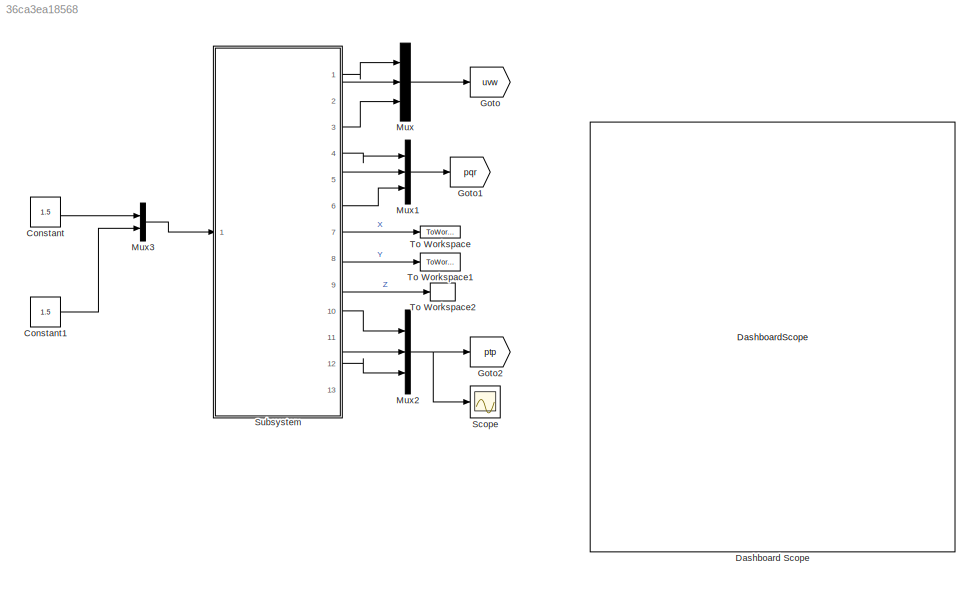
MODEL slx_36ca3ea18568
KIND model
CONFIG AbsTol = auto
CONFIG EnableMultiTasking = off
CONFIG FixedStep = auto
CONFIG MaxStep = auto
CONFIG MinStep = auto
CONFIG RelTol = 1e-3
CONFIG SampleTimeConstraint = Unconstrained
CONFIG Solver = VariableStepAuto
CONFIG SolverName = VariableStepAuto
CONFIG StartTime = 0.0
CONFIG StopTime = 100
BLOCK [Constant] Constant
  Value = 1.5
BLOCK [Constant] Constant1
  Value = 1.5
BLOCK [DashboardScope] Dashboard Scope
BLOCK [Goto] Goto
  GotoTag = uvw
BLOCK [Goto] Goto1
  GotoTag = pqr
BLOCK [Goto] Goto2
  GotoTag = ptp
BLOCK [Mux] Mux
  DisplayOption = bar
  Inputs = 3
  Ports = [3, 1]
BLOCK [Mux] Mux1
  DisplayOption = bar
  Inputs = 3
  Ports = [3, 1]
BLOCK [Mux] Mux2
  DisplayOption = bar
  Inputs = 3
  Ports = [3, 1]
BLOCK [Mux] Mux3
  DisplayOption = bar
  Inputs = 2
  Ports = [2, 1]
BLOCK [Scope] Scope
  Floating = off
  NumInputPorts = 1
  Ports = [1]
  ScopeSpecificationString = Simulink.scopes.TimeScopeBlockCfg('CurrentConfiguration', extmgr.ConfigurationSet(extmgr.Configuration('Core','General UI',true),extmgr.Configuration('Core','Source UI',true),extmgr.Configuration('Sources','WiredSimulink',true),extmgr.Configuration('Visuals','Time Domain',true,'SerializedDisplays',{struct('MinYLimReal','-154.12451','MaxYLimReal','129.85029','YLabelReal','','MinYLimMag',' 0.00000',...<+1400ch>
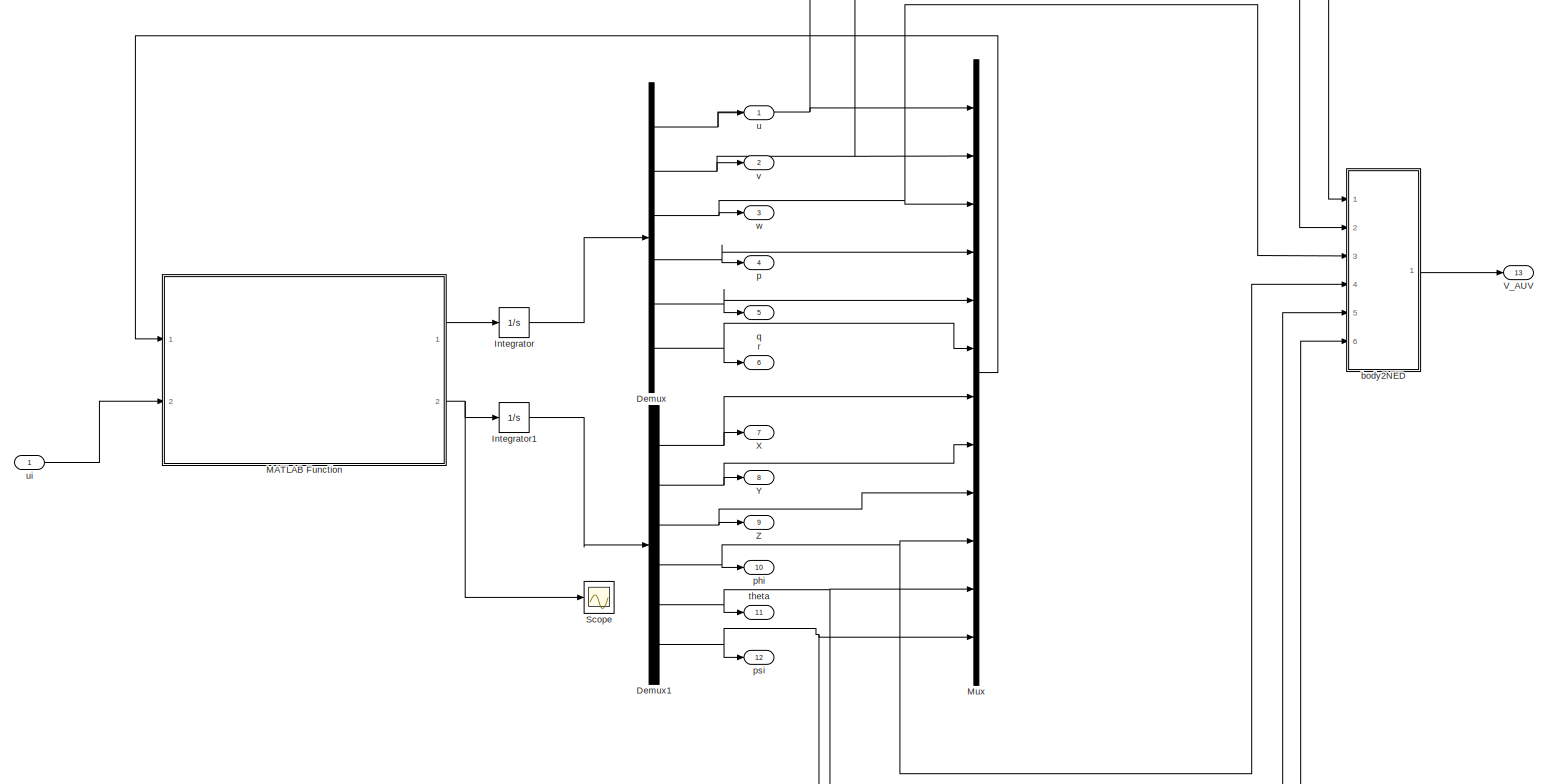
[diagram: Subsystem - part 1/1, most of the canvas]
BLOCK [SubSystem] Subsystem
  Ports = [1, 13]
  RequestExecContextInheritance = off
BLOCK [Demux] Subsystem/Demux
  DisplayOption = bar
  Outputs = 6
  Ports = [1, 6]
BLOCK [Demux] Subsystem/Demux1
  DisplayOption = bar
  Outputs = 6
  Ports = [1, 6]
BLOCK [Integrator] Subsystem/Integrator
  InitialCondition = [0.0001; 0.0001; 0.0001; 0.0001; 0.0001; 0.0001]
  Ports = [1, 1]
BLOCK [Integrator] Subsystem/Integrator1
  InitialCondition = [0.0001; 0.0001; 0.0001; 0.0001; 0.0001; 0.0001]
  Ports = [1, 1]
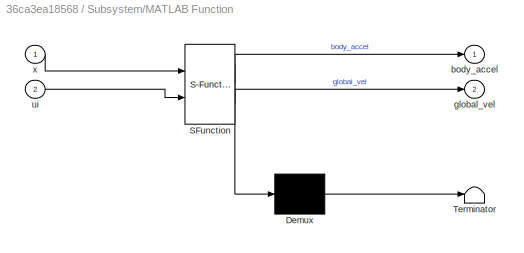
BLOCK [SubSystem] Subsystem/MATLAB Function
  ErrorFcn = Stateflow.Translate.translate
  PermitHierarchicalResolution = ExplicitOnly
  Ports = [2, 2]
  RequestExecContextInheritance = off
  SFBlockType = MATLAB Function
  TreatAsAtomicUnit = on
BLOCK [Demux] Subsystem/MATLAB Function/ Demux 
  Outputs = 1
  Ports = [1, 1]
BLOCK [S-Function] Subsystem/MATLAB Function/ SFunction 
  EnableBusSupport = on
  FunctionName = sf_sfun
  PortCounts = [2 3]
  Ports = [2, 3]
  SFcnIsStateOwnerBlock = off
  SFunctionDeploymentMode = off
  Tag = Stateflow S-Function 2
BLOCK [Terminator] Subsystem/MATLAB Function/ Terminator 
BLOCK [Outport] Subsystem/MATLAB Function/body_accel
  IconDisplay = Port number
BLOCK [Outport] Subsystem/MATLAB Function/global_vel
  IconDisplay = Port number
  Port = 2
BLOCK [Inport] Subsystem/MATLAB Function/ui
  IconDisplay = Port number
  Port = 2
BLOCK [Inport] Subsystem/MATLAB Function/x
  IconDisplay = Port number
BLOCK [Mux] Subsystem/Mux
  DisplayOption = bar
  Inputs = 12
  Ports = [12, 1]
BLOCK [Scope] Subsystem/Scope
  Floating = off
  NumInputPorts = 1
  Ports = [1]
  ScopeSpecificationString = Simulink.scopes.TimeScopeBlockCfg('CurrentConfiguration', extmgr.ConfigurationSet(extmgr.Configuration('Core','General UI',true),extmgr.Configuration('Core','Source UI',true),extmgr.Configuration('Sources','WiredSimulink',true,'DataLoggingVariableName','ScopeData1'),extmgr.Configuration('Visuals','Time Domain',true,'SerializedDisplays',{struct('MinYLimReal','-50.1057','MaxYLimReal','50.58218','YLa...<+1686ch>
BLOCK [Outport] Subsystem/V_AUV
  IconDisplay = Port number
  Port = 13
BLOCK [Outport] Subsystem/X
  IconDisplay = Port number
  Port = 7
BLOCK [Outport] Subsystem/Y
  IconDisplay = Port number
  Port = 8
BLOCK [Outport] Subsystem/Z
  IconDisplay = Port number
  Port = 9
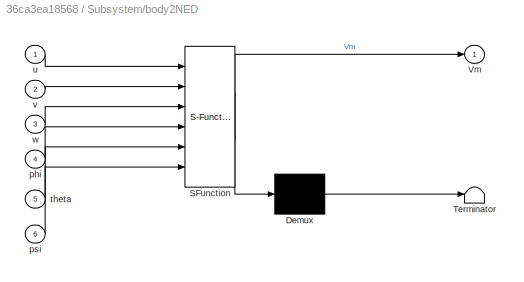
BLOCK [SubSystem] Subsystem/body2NED
  ErrorFcn = Stateflow.Translate.translate
  PermitHierarchicalResolution = ExplicitOnly
  Ports = [6, 1]
  RequestExecContextInheritance = off
  SFBlockType = MATLAB Function
  TreatAsAtomicUnit = on
BLOCK [Demux] Subsystem/body2NED/ Demux 
  Outputs = 1
  Ports = [1, 1]
BLOCK [S-Function] Subsystem/body2NED/ SFunction 
  EnableBusSupport = on
  FunctionName = sf_sfun
  PortCounts = [6 2]
  Ports = [6, 2]
  SFcnIsStateOwnerBlock = off
  SFunctionDeploymentMode = off
  Tag = Stateflow S-Function 11
BLOCK [Terminator] Subsystem/body2NED/ Terminator 
BLOCK [Outport] Subsystem/body2NED/Vm
  IconDisplay = Port number
  VectorParamsAs1DForOutWhenUnconnected = off
BLOCK [Inport] Subsystem/body2NED/phi
  IconDisplay = Port number
  Port = 4
BLOCK [Inport] Subsystem/body2NED/psi
  IconDisplay = Port number
  Port = 6
BLOCK [Inport] Subsystem/body2NED/theta
  IconDisplay = Port number
  Port = 5
BLOCK [Inport] Subsystem/body2NED/u
  IconDisplay = Port number
BLOCK [Inport] Subsystem/body2NED/v
  IconDisplay = Port number
  Port = 2
BLOCK [Inport] Subsystem/body2NED/w
  IconDisplay = Port number
  Port = 3
BLOCK [Outport] Subsystem/p
  IconDisplay = Port number
  Port = 4
BLOCK [Outport] Subsystem/phi
  IconDisplay = Port number
  Port = 10
BLOCK [Outport] Subsystem/psi
  IconDisplay = Port number
  Port = 12
BLOCK [Outport] Subsystem/q
  IconDisplay = Port number
  Port = 5
BLOCK [Outport] Subsystem/r
  IconDisplay = Port number
  Port = 6
BLOCK [Outport] Subsystem/theta
  IconDisplay = Port number
  Port = 11
BLOCK [Outport] Subsystem/u
  IconDisplay = Port number
BLOCK [Inport] Subsystem/ui
  IconDisplay = Port number
BLOCK [Outport] Subsystem/v
  IconDisplay = Port number
  Port = 2
BLOCK [Outport] Subsystem/w
  IconDisplay = Port number
  Port = 3
BLOCK [ToWorkspace] To Workspace
  MaxDataPoints = inf
  Ports = [1]
  SampleTime = -1
  Save2DSignal = 2-D array (concatenate along first dimension)
  VariableName = X
BLOCK [ToWorkspace] To Workspace1
  MaxDataPoints = inf
  Ports = [1]
  SampleTime = -1
  Save2DSignal = 2-D array (concatenate along first dimension)
  VariableName = Y
BLOCK [ToWorkspace] To Workspace2
  MaxDataPoints = inf
  Ports = [1]
  SampleTime = -1
  Save2DSignal = 2-D array (concatenate along first dimension)
  VariableName = Z
LINE Constant1:1 -> Mux3:2
LINE Constant:1 -> Mux3:1
LINE Mux1:1 -> Goto1:1
NET Mux2:1 -> Goto2:1, Scope:1
LINE Mux3:1 -> Subsystem:1
LINE Mux:1 -> Goto:1
NET Subsystem/Demux1:1 -> Subsystem/Mux:7, Subsystem/X:1
NET Subsystem/Demux1:2 -> Subsystem/Mux:8, Subsystem/Y:1
NET Subsystem/Demux1:3 -> Subsystem/Mux:9, Subsystem/Z:1
NET Subsystem/Demux1:4 -> Subsystem/Mux:10, Subsystem/body2NED:4, Subsystem/phi:1
NET Subsystem/Demux1:5 -> Subsystem/Mux:11, Subsystem/body2NED:5, Subsystem/theta:1
NET Subsystem/Demux1:6 -> Subsystem/Mux:12, Subsystem/body2NED:6, Subsystem/psi:1
NET Subsystem/Demux:1 -> Subsystem/Mux:1, Subsystem/body2NED:1, Subsystem/u:1
NET Subsystem/Demux:2 -> Subsystem/Mux:2, Subsystem/body2NED:2, Subsystem/v:1
NET Subsystem/Demux:3 -> Subsystem/Mux:3, Subsystem/body2NED:3, Subsystem/w:1
NET Subsystem/Demux:4 -> Subsystem/Mux:4, Subsystem/p:1
NET Subsystem/Demux:5 -> Subsystem/Mux:5, Subsystem/q:1
NET Subsystem/Demux:6 -> Subsystem/Mux:6, Subsystem/r:1
LINE Subsystem/Integrator1:1 -> Subsystem/Demux1:1
LINE Subsystem/Integrator:1 -> Subsystem/Demux:1
LINE Subsystem/MATLAB Function:1 -> Subsystem/Integrator:1
NET Subsystem/MATLAB Function:2 -> Subsystem/Integrator1:1, Subsystem/Scope:1
LINE Subsystem/Mux:1 -> Subsystem/MATLAB Function:1
LINE Subsystem/body2NED:1 -> Subsystem/V_AUV:1
LINE Subsystem/ui:1 -> Subsystem/MATLAB Function:2
LINE Subsystem:1 -> Mux:1
LINE Subsystem:10 -> Mux2:1
LINE Subsystem:11 -> Mux2:2
LINE Subsystem:12 -> Mux2:3
LINE Subsystem:2 -> Mux:2
LINE Subsystem:3 -> Mux:3
LINE Subsystem:4 -> Mux1:1
LINE Subsystem:5 -> Mux1:2
LINE Subsystem:6 -> Mux1:3
LINE Subsystem:7 -> To Workspace:1
LINE Subsystem:8 -> To Workspace1:1
LINE Subsystem:9 -> To Workspace2:1
note: NET lines group one-source signal fan-out (src -> all destinations, sorted); 1:1 wires keep LINE
CHART Subsystem/MATLAB Function states=1 transitions=1
  STATE_LABEL 'eML_blk_kernel()'
  STATE_LABEL "SCRIPT:\n% REMUS.M Vehicle Simulator, returns the \n%   time derivative of the state vector\nfunction [body_accel,global_vel] = remus(x,ui)\n% TERMS\n% ---------------------------------------------------------------------\n% STATE VECTOR:\n% x = [u v w p q r xpos ypos zpos phi theta psi]'\n% Body-referenced Coordinates\n% u = Surge velocity [m/sec]\n% v = Sway velocity [m/sec]\n% w = Heave velocity [m/sec]\n%...<+3608ch>"
CHART Subsystem/body2NED states=1 transitions=1
  STATE_LABEL 'eML_blk_kernel()'
  STATE_LABEL 'SCRIPT:\nfunction Vm= fcn(u,v,w,phi,theta,psi)\nN=[cos(theta)*cos(psi) (sin(phi)*sin(theta)*cos(psi)-cos(phi)*sin(psi)) (cos(phi)*sin(theta)*cos(psi)+sin(phi)*sin(psi));\n   -cos(theta)*sin(psi) -(sin(phi)*sin(theta)*sin(psi)+cos(phi)*cos(psi)) -(cos(phi)*sin(theta)*sin(psi) - sin(phi)*cos(psi));\n   sin(theta) -sin(phi)*cos(theta) -cos(phi)*cos(theta)];\nVm=N*[u;v;w];\nend'
